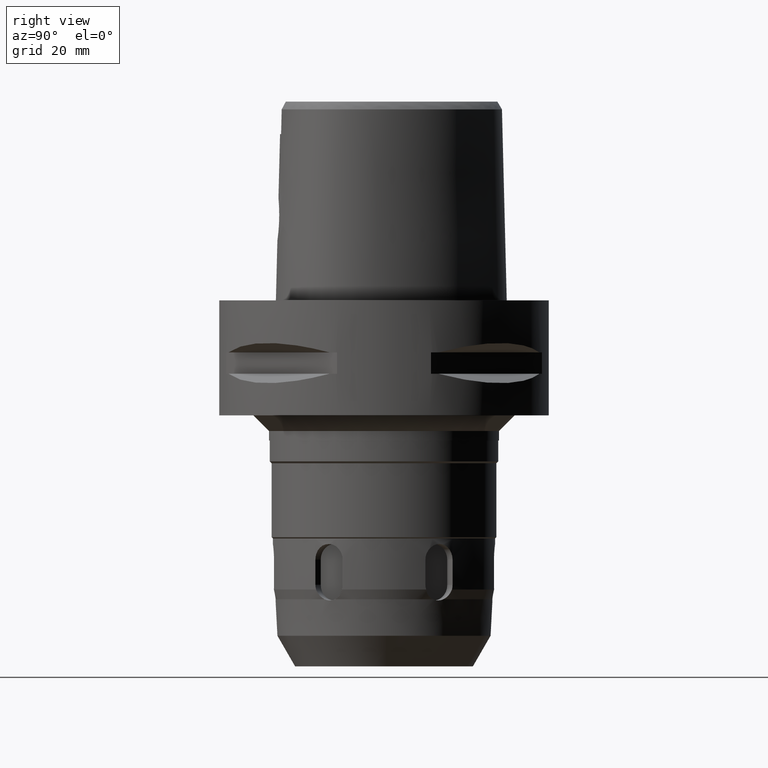
[diagram: clean part render]
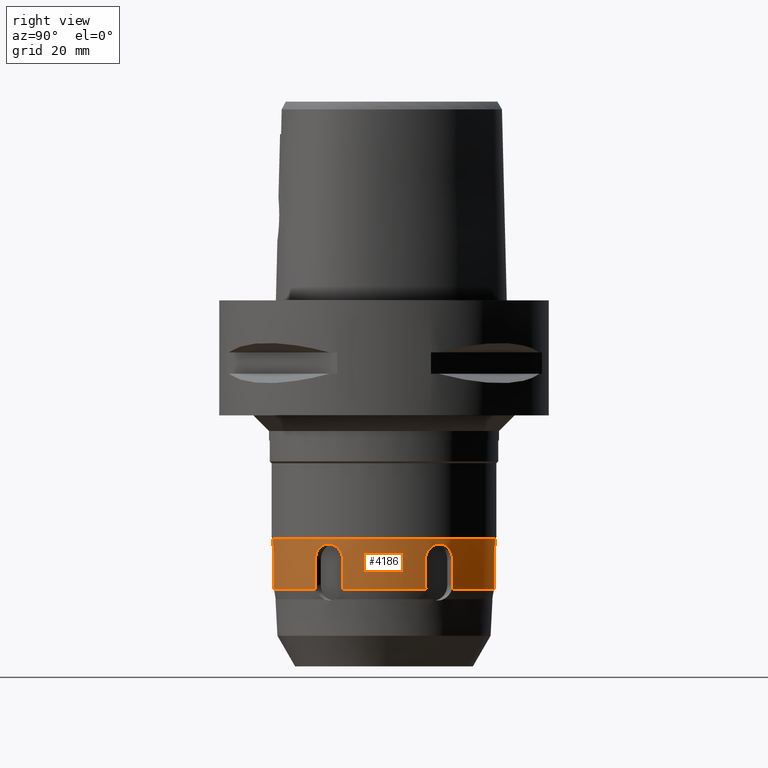
[diagram: same view with one face highlighted and labeled with its STEP entity id]
A machine part, right view. The second image highlights one B-rep face of the part: STEP entity #4186.
In plain terms, the highlighted cylindrical surface (partial cylindrical patch) has radius 21.25 mm, axis along (0, 0, -1).
Its self-contained STEP definition (entity closure, byte-faithful):
#704=CARTESIAN_POINT('',(0.E0,0.E0,-4.555E1));
#705=DIRECTION('',(0.E0,0.E0,-1.E0));
#706=DIRECTION('',(0.E0,1.E0,0.E0));
#707=AXIS2_PLACEMENT_3D('',#704,#705,#706);
#743=CARTESIAN_POINT('',(-2.567615003200E-14,-2.125E1,-4.66E1));
#918=CARTESIAN_POINT('',(4.728849157803E-14,2.125E1,-4.66E1));
#923=DIRECTION('',(-2.445347622095E-14,0.E0,-1.E0));
#924=VECTOR('',#923,1.05E0);
#925=CARTESIAN_POINT('',(0.E0,-2.125E1,-4.555E1));
#926=LINE('',#925,#924);
#944=CARTESIAN_POINT('',(1.671872319895E1,1.311666095456E1,-4.96E1));
#945=CARTESIAN_POINT('',(1.671872319895E1,1.311666095456E1,-4.933379791510E1));
#946=CARTESIAN_POINT('',(1.676123621623E1,1.306275115282E1,-4.882074715584E1));
#947=CARTESIAN_POINT('',(1.694867451517E1,1.282018111180E1,-4.808221549084E1));
#948=CARTESIAN_POINT('',(1.723784024842E1,1.243072233061E1,-4.745572118466E1));
#949=CARTESIAN_POINT('',(1.759913287066E1,1.191612741768E1,-4.697301523596E1));
#950=CARTESIAN_POINT('',(1.800403209641E1,1.129648766409E1,-4.666829134713E1));
#951=CARTESIAN_POINT('',(1.826964573644E1,1.085604583782E1,-4.659999793132E1));
#952=CARTESIAN_POINT('',(1.840304004243E1,1.062500012240E1,-4.659999793132E1));
#957=CARTESIAN_POINT('',(1.840304004243E1,1.062500012240E1,-4.659999793132E1));
#958=CARTESIAN_POINT('',(1.853574864374E1,1.039514208234E1,-4.659999793132E1));
#959=CARTESIAN_POINT('',(1.878343210619E1,9.946733057830E0,-4.666758012658E1));
#960=CARTESIAN_POINT('',(1.911733819137E1,9.287141210837E0,-4.697058583884E1));
#961=CARTESIAN_POINT('',(1.938279321588E1,8.716297995516E0,-4.745212205223E1));
#962=CARTESIAN_POINT('',(1.957620161717E1,8.269667572967E0,-4.807865539086E1));
#963=CARTESIAN_POINT('',(1.969313994092E1,7.984665750791E0,-4.881855155360E1));
#964=CARTESIAN_POINT('',(1.971872319895E1,7.920508531851E0,-4.933296625424E1));
#965=CARTESIAN_POINT('',(1.971872319895E1,7.920508531851E0,-4.96E1));
#970=DIRECTION('',(-2.534703475819E-6,-1.557840073513E-6,-9.999999999956E-1));
#971=VECTOR('',#970,4.800000003142E0);
#972=CARTESIAN_POINT('',(1.971872319895E1,7.920508531851E0,-4.96E1));
#973=LINE('',#972,#971);
#977=CARTESIAN_POINT('',(1.971871103237E1,7.920501054218E0,-5.440000000312E1));
#978=CARTESIAN_POINT('',(1.971871103237E1,7.920501054218E0,-5.450194895277E1));
#979=CARTESIAN_POINT('',(1.971484260139E1,7.930197852505E0,-5.470457107468E1));
#980=CARTESIAN_POINT('',(1.969733952301E1,7.973610046019E0,-5.500658111750E1));
#981=CARTESIAN_POINT('',(1.967797819010E1,8.021261975761E0,-5.520283074626E1));
#982=CARTESIAN_POINT('',(1.966629611086E1,8.049802181526E0,-5.529999827928E1));
#987=CARTESIAN_POINT('',(1.966631626823E1,-8.049790249418E0,-5.529994046295E1));
#988=CARTESIAN_POINT('',(1.967799593754E1,-8.021255905433E0,-5.520277232577E1));
#989=CARTESIAN_POINT('',(1.969733071141E1,-7.973619034714E0,-5.500660738934E1));
#990=CARTESIAN_POINT('',(1.971483694715E1,-7.930199872019E0,-5.470456264855E1));
#991=CARTESIAN_POINT('',(1.971872339800E1,-7.920506999311E0,-5.450194866380E1));
#992=CARTESIAN_POINT('',(1.971872339800E1,-7.920506999311E0,-5.440000000021E1));
#997=DIRECTION('',(-4.146747537762E-8,-3.192792100937E-7,9.999999999999E-1));
#998=VECTOR('',#997,4.800000000206E0);
#999=CARTESIAN_POINT('',(1.971872339800E1,-7.920506999311E0,-5.440000000021E1));
#1000=LINE('',#999,#998);
#1004=CARTESIAN_POINT('',(1.971872319895E1,-7.920508531851E0,-4.96E1));
#1005=CARTESIAN_POINT('',(1.971872319895E1,-7.920508531851E0,
-4.933379654980E1));
#1006=CARTESIAN_POINT('',(1.969329227982E1,-7.984281245963E0,
-4.882074311803E1));
#1007=CARTESIAN_POINT('',(1.957693772674E1,-8.267897029111E0,
-4.808220561418E1));
#1008=CARTESIAN_POINT('',(1.938423734344E1,-8.713055830317E0,
-4.745570966560E1));
#1009=CARTESIAN_POINT('',(1.911922648340E1,-9.283250787244E0,
-4.697300458184E1));
#1010=CARTESIAN_POINT('',(1.878506180084E1,-9.943704071281E0,
-4.666829320929E1));
#1011=CARTESIAN_POINT('',(1.853643479029E1,-1.039395359463E1,
-4.659999809687E1));
#1012=CARTESIAN_POINT('',(1.840304002207E1,-1.062500011065E1,
-4.659999809687E1));
#1017=CARTESIAN_POINT('',(1.840304002207E1,-1.062500011065E1,
-4.659999809687E1));
#1018=CARTESIAN_POINT('',(1.827032624819E1,-1.085486710987E1,
-4.659999809687E1));
#1019=CARTESIAN_POINT('',(1.800582618435E1,-1.129358450163E1,
-4.666758538950E1));
#1020=CARTESIAN_POINT('',(1.760155230669E1,-1.191255496477E1,
-4.697060314073E1));
#1021=CARTESIAN_POINT('',(1.723991995347E1,-1.242785897733E1,
-4.745214360937E1));
#1022=CARTESIAN_POINT('',(1.694983783062E1,-1.281866086234E1,
-4.807867218451E1));
#1023=CARTESIAN_POINT('',(1.676149284800E1,-1.306242722072E1,
-4.881855784925E1));
#1024=CARTESIAN_POINT('',(1.671872319895E1,-1.311666095456E1,
-4.933296826257E1));
#1025=CARTESIAN_POINT('',(1.671872319895E1,-1.311666095456E1,-4.96E1));
#1030=DIRECTION('',(-2.616480819181E-6,1.416197595674E-6,-9.999999999956E-1));
#1031=VECTOR('',#1030,4.800000003142E0);
#1032=CARTESIAN_POINT('',(1.671872319895E1,-1.311666095456E1,-4.96E1));
#1033=LINE('',#1032,#1031);
#1037=CARTESIAN_POINT('',(1.671871063984E1,-1.311665415681E1,
-5.440000000312E1));
#1038=CARTESIAN_POINT('',(1.671871063984E1,-1.311665415681E1,
-5.450194895277E1));
#1039=CARTESIAN_POINT('',(1.672517409800E1,-1.310845559817E1,
-5.470457107468E1));
#1040=CARTESIAN_POINT('',(1.675401862123E1,-1.307159139089E1,
-5.500658111747E1));
#1041=CARTESIAN_POINT('',(1.678560573648E1,-1.303099801984E1,
-5.520283074633E1));
#1042=CARTESIAN_POINT('',(1.680448124008E1,-1.300661093956E1,
-5.529999827935E1));
#1047=CARTESIAN_POINT('',(2.861835282155E0,-2.105642461190E1,
-5.529994046673E1));
#1048=CARTESIAN_POINT('',(2.892386583913E0,-2.105227233018E1,
-5.520277232984E1));
#1049=CARTESIAN_POINT('',(2.943308712558E0,-2.104519830008E1,
-5.500660738769E1));
#1050=CARTESIAN_POINT('',(2.989663926495E0,-2.103864956380E1,
-5.470456264908E1));
#1051=CARTESIAN_POINT('',(3.000001426565E0,-2.103716889259E1,
-5.450194866380E1));
#1052=CARTESIAN_POINT('',(3.000001426565E0,-2.103716889259E1,
-5.440000000021E1));
#1057=DIRECTION('',(-2.972011096357E-7,-1.237125091205E-7,9.999999999999E-1));
#1058=VECTOR('',#1057,4.800000000206E0);
#1059=CARTESIAN_POINT('',(3.000001426565E0,-2.103716889259E1,
-5.440000000021E1));
#1060=LINE('',#1059,#1058);
#1064=CARTESIAN_POINT('',(3.E0,-2.103716948641E1,-4.96E1));
#1065=CARTESIAN_POINT('',(3.E0,-2.103716948641E1,-4.933421519836E1));
#1066=CARTESIAN_POINT('',(2.932279389408E0,-2.104699945434E1,
-4.882175936811E1));
#1067=CARTESIAN_POINT('',(2.628876115544E0,-2.108799529368E1,
-4.808325925087E1));
#1068=CARTESIAN_POINT('',(2.147092814670E0,-2.114369921362E1,
-4.745636864641E1));
#1069=CARTESIAN_POINT('',(1.520547038077E0,-2.119933219757E1,
-4.697322434453E1));
#1070=CARTESIAN_POINT('',(7.810841241312E-1,-2.124019435587E1,
-4.666828607813E1));
#1071=CARTESIAN_POINT('',(2.667891004054E-1,-2.125E1,-4.66E1));
#1072=CARTESIAN_POINT('',(-2.567615003200E-14,-2.125E1,-4.66E1));
#1077=DIRECTION('',(2.706161919943E-14,0.E0,-1.E0));
#1078=VECTOR('',#1077,1.05E0);
#1079=CARTESIAN_POINT('',(1.887379141863E-14,2.125E1,-4.555E1));
#1080=LINE('',#1079,#1078);
#1084=CARTESIAN_POINT('',(4.728849157803E-14,2.125E1,-4.66E1));
#1085=CARTESIAN_POINT('',(2.655905181919E-1,2.125E1,-4.66E1));
#1086=CARTESIAN_POINT('',(7.780470340271E-1,2.124028374967E1,
-4.666766907772E1));
#1087=CARTESIAN_POINT('',(1.516506238430E0,2.119961985453E1,-4.697098492057E1));
#1088=CARTESIAN_POINT('',(2.143567747044E0,2.114406716711E1,-4.745282298070E1));
#1089=CARTESIAN_POINT('',(2.626822495208E0,2.108826187940E1,-4.807948769153E1));
#1090=CARTESIAN_POINT('',(2.931777548822E0,2.104707316218E1,-4.881918868424E1));
#1091=CARTESIAN_POINT('',(3.E0,2.103716948641E1,-4.933321909583E1));
#1092=CARTESIAN_POINT('',(3.E0,2.103716948641E1,-4.96E1));
#1097=DIRECTION('',(8.169025284203E-8,-2.974001426140E-6,-9.999999999956E-1));
#1098=VECTOR('',#1097,4.800000003142E0);
#1099=CARTESIAN_POINT('',(3.E0,2.103716948641E1,-4.96E1));
#1100=LINE('',#1099,#1098);
#1104=CARTESIAN_POINT('',(3.000000392113E0,2.103715521120E1,-5.440000000312E1));
#1105=CARTESIAN_POINT('',(3.000000392113E0,2.103715521120E1,-5.450194895272E1));
#1106=CARTESIAN_POINT('',(2.989668500771E0,2.103865345099E1,-5.470457107454E1));
#1107=CARTESIAN_POINT('',(2.943320900681E0,2.104520143706E1,-5.500658111735E1));
#1108=CARTESIAN_POINT('',(2.892372453533E0,2.105225999565E1,-5.520283074607E1));
#1109=CARTESIAN_POINT('',(2.861814870705E0,2.105641312114E1,-5.529999827911E1));
#1114=CARTESIAN_POINT('',(1.680448098584E1,1.300663436164E1,-5.529994046608E1));
#1115=CARTESIAN_POINT('',(1.678560935353E1,1.303101642421E1,-5.520277232901E1));
#1116=CARTESIAN_POINT('',(1.675402199968E1,1.307157926572E1,-5.500660738783E1));
#1117=CARTESIAN_POINT('',(1.672517301989E1,1.310844969162E1,-5.470456264898E1));
#1118=CARTESIAN_POINT('',(1.671872197126E1,1.311666189320E1,-5.450194866380E1));
#1119=CARTESIAN_POINT('',(1.671872197126E1,1.311666189320E1,-5.440000000021E1));
#1124=DIRECTION('',(2.557701428320E-7,-1.955514716739E-7,9.999999999999E-1));
#1125=VECTOR('',#1124,4.800000000206E0);
#1126=CARTESIAN_POINT('',(1.671872197126E1,1.311666189320E1,-5.440000000021E1));
#1127=LINE('',#1126,#1125);
#1261=CARTESIAN_POINT('',(0.E0,0.E0,-5.53E1));
#1262=DIRECTION('',(0.E0,0.E0,1.E0));
#1263=DIRECTION('',(7.907991113522E-1,6.120757841024E-1,0.E0));
#1264=AXIS2_PLACEMENT_3D('',#1261,#1262,#1263);
#2176=CARTESIAN_POINT('',(0.E0,0.E0,-5.53E1));
#2177=DIRECTION('',(0.E0,0.E0,1.E0));
#2178=DIRECTION('',(1.346736224493E-1,-9.908900117654E-1,0.E0));
#2179=AXIS2_PLACEMENT_3D('',#2176,#2177,#2178);
#2280=CARTESIAN_POINT('',(0.E0,0.E0,-5.53E1));
#2281=DIRECTION('',(0.E0,0.E0,1.E0));
#2282=DIRECTION('',(9.254727337502E-1,-3.788142276697E-1,0.E0));
#2283=AXIS2_PLACEMENT_3D('',#2280,#2281,#2282);
#2852=CARTESIAN_POINT('',(1.887379141863E-14,2.125E1,-4.555E1));
#2853=VERTEX_POINT('',#2852);
#2854=CARTESIAN_POINT('',(0.E0,-2.125E1,-4.555E1));
#2855=VERTEX_POINT('',#2854);
#2856=VERTEX_POINT('',#743);
#2886=VERTEX_POINT('',#918);
#2887=VERTEX_POINT('',#1064);
#2894=VERTEX_POINT('',#957);
#2895=VERTEX_POINT('',#965);
#2896=VERTEX_POINT('',#944);
#2897=CARTESIAN_POINT('',(1.971871103237E1,7.920501054218E0,-5.440000000312E1));
#2898=VERTEX_POINT('',#2897);
#2899=VERTEX_POINT('',#982);
#2900=CARTESIAN_POINT('',(1.966629559219E1,-8.049802337982E0,-5.53E1));
#2901=VERTEX_POINT('',#2900);
#2902=VERTEX_POINT('',#992);
#2903=CARTESIAN_POINT('',(1.971872319895E1,-7.920508531851E0,-4.96E1));
#2904=VERTEX_POINT('',#2903);
#2905=VERTEX_POINT('',#1017);
#2906=VERTEX_POINT('',#1025);
#2907=CARTESIAN_POINT('',(1.671871063984E1,-1.311665415681E1,
-5.440000000312E1));
#2908=VERTEX_POINT('',#2907);
#2909=VERTEX_POINT('',#1042);
#2910=CARTESIAN_POINT('',(2.861814477047E0,-2.105641275002E1,-5.53E1));
#2911=VERTEX_POINT('',#2910);
#2912=VERTEX_POINT('',#1052);
#2913=VERTEX_POINT('',#1092);
#2914=CARTESIAN_POINT('',(3.000000392113E0,2.103715521120E1,-5.440000000312E1));
#2915=VERTEX_POINT('',#2914);
#2916=VERTEX_POINT('',#1109);
#2917=CARTESIAN_POINT('',(1.680448111624E1,1.300661041218E1,-5.53E1));
#2918=VERTEX_POINT('',#2917);
#2919=VERTEX_POINT('',#1119);
#4135=CARTESIAN_POINT('',(0.E0,1.267509437118E-14,3.5E0));
#4136=DIRECTION('',(0.E0,0.E0,-1.E0));
#4137=DIRECTION('',(0.E0,-1.E0,0.E0));
#4138=AXIS2_PLACEMENT_3D('',#4135,#4136,#4137);
#4139=CYLINDRICAL_SURFACE('',#4138,2.125E1);
#4141=ORIENTED_EDGE('',*,*,#4140,.T.);
#4143=ORIENTED_EDGE('',*,*,#4142,.T.);
#4145=ORIENTED_EDGE('',*,*,#4144,.T.);
#4147=ORIENTED_EDGE('',*,*,#4146,.T.);
#4149=ORIENTED_EDGE('',*,*,#4148,.F.);
#4151=ORIENTED_EDGE('',*,*,#4150,.T.);
#4153=ORIENTED_EDGE('',*,*,#4152,.T.);
#4155=ORIENTED_EDGE('',*,*,#4154,.T.);
#4157=ORIENTED_EDGE('',*,*,#4156,.T.);
#4159=ORIENTED_EDGE('',*,*,#4158,.T.);
#4161=ORIENTED_EDGE('',*,*,#4160,.T.);
#4163=ORIENTED_EDGE('',*,*,#4162,.F.);
#4165=ORIENTED_EDGE('',*,*,#4164,.T.);
#4167=ORIENTED_EDGE('',*,*,#4166,.T.);
#4168=ORIENTED_EDGE('',*,*,#4121,.T.);
#4169=ORIENTED_EDGE('',*,*,#4111,.F.);
#4170=ORIENTED_EDGE('',*,*,#4040,.F.);
#4171=ORIENTED_EDGE('',*,*,#4108,.T.);
#4173=ORIENTED_EDGE('',*,*,#4172,.T.);
#4175=ORIENTED_EDGE('',*,*,#4174,.T.);
#4177=ORIENTED_EDGE('',*,*,#4176,.T.);
#4179=ORIENTED_EDGE('',*,*,#4178,.F.);
#4181=ORIENTED_EDGE('',*,*,#4180,.T.);
#4183=ORIENTED_EDGE('',*,*,#4182,.T.);
#4184=EDGE_LOOP('',(#4141,#4143,#4145,#4147,#4149,#4151,#4153,#4155,#4157,#4159,
#4161,#4163,#4165,#4167,#4168,#4169,#4170,#4171,#4173,#4175,#4177,#4179,#4181,
#4183));
#4185=FACE_OUTER_BOUND('',#4184,.F.);
#708=CIRCLE('',#707,2.125E1);
#953=B_SPLINE_CURVE_WITH_KNOTS('',3,(#944,#945,#946,#947,#948,#949,#950,#951,
#952),.UNSPECIFIED.,.F.,.F.,(4,1,1,1,1,1,4),(0.E0,1.666666666667E-1,
3.333333333333E-1,5.E-1,6.666666666667E-1,8.333333333333E-1,1.E0),
.UNSPECIFIED.);
#966=B_SPLINE_CURVE_WITH_KNOTS('',3,(#957,#958,#959,#960,#961,#962,#963,#964,
#965),.UNSPECIFIED.,.F.,.F.,(4,1,1,1,1,1,4),(0.E0,1.666666666667E-1,
3.333333333333E-1,5.E-1,6.666666666667E-1,8.333333333333E-1,1.E0),
.UNSPECIFIED.);
#983=B_SPLINE_CURVE_WITH_KNOTS('',3,(#977,#978,#979,#980,#981,#982),
.UNSPECIFIED.,.F.,.F.,(4,1,1,4),(0.E0,3.333333333333E-1,6.666666666667E-1,1.E0),
.UNSPECIFIED.);
#993=B_SPLINE_CURVE_WITH_KNOTS('',3,(#987,#988,#989,#990,#991,#992),
.UNSPECIFIED.,.F.,.F.,(4,1,1,4),(0.E0,3.333333333333E-1,6.666666666667E-1,1.E0),
.UNSPECIFIED.);
#1013=B_SPLINE_CURVE_WITH_KNOTS('',3,(#1004,#1005,#1006,#1007,#1008,#1009,#1010,
#1011,#1012),.UNSPECIFIED.,.F.,.F.,(4,1,1,1,1,1,4),(0.E0,1.666666666667E-1,
3.333333333333E-1,5.E-1,6.666666666667E-1,8.333333333333E-1,1.E0),
.UNSPECIFIED.);
#1026=B_SPLINE_CURVE_WITH_KNOTS('',3,(#1017,#1018,#1019,#1020,#1021,#1022,#1023,
#1024,#1025),.UNSPECIFIED.,.F.,.F.,(4,1,1,1,1,1,4),(0.E0,1.666666666667E-1,
3.333333333333E-1,5.E-1,6.666666666667E-1,8.333333333333E-1,1.E0),
.UNSPECIFIED.);
#1043=B_SPLINE_CURVE_WITH_KNOTS('',3,(#1037,#1038,#1039,#1040,#1041,#1042),
.UNSPECIFIED.,.F.,.F.,(4,1,1,4),(0.E0,3.333333333333E-1,6.666666666667E-1,1.E0),
.UNSPECIFIED.);
#1053=B_SPLINE_CURVE_WITH_KNOTS('',3,(#1047,#1048,#1049,#1050,#1051,#1052),
.UNSPECIFIED.,.F.,.F.,(4,1,1,4),(0.E0,3.333333333333E-1,6.666666666667E-1,1.E0),
.UNSPECIFIED.);
#1073=B_SPLINE_CURVE_WITH_KNOTS('',3,(#1064,#1065,#1066,#1067,#1068,#1069,#1070,
#1071,#1072),.UNSPECIFIED.,.F.,.F.,(4,1,1,1,1,1,4),(0.E0,1.666666666667E-1,
3.333333333333E-1,5.E-1,6.666666666667E-1,8.333333333333E-1,1.E0),
.UNSPECIFIED.);
#1093=B_SPLINE_CURVE_WITH_KNOTS('',3,(#1084,#1085,#1086,#1087,#1088,#1089,#1090,
#1091,#1092),.UNSPECIFIED.,.F.,.F.,(4,1,1,1,1,1,4),(0.E0,1.666666666667E-1,
3.333333333333E-1,5.E-1,6.666666666667E-1,8.333333333333E-1,1.E0),
.UNSPECIFIED.);
#1110=B_SPLINE_CURVE_WITH_KNOTS('',3,(#1104,#1105,#1106,#1107,#1108,#1109),
.UNSPECIFIED.,.F.,.F.,(4,1,1,4),(0.E0,3.333333333333E-1,6.666666666667E-1,1.E0),
.UNSPECIFIED.);
#1120=B_SPLINE_CURVE_WITH_KNOTS('',3,(#1114,#1115,#1116,#1117,#1118,#1119),
.UNSPECIFIED.,.F.,.F.,(4,1,1,4),(0.E0,3.333333333333E-1,6.666666666667E-1,1.E0),
.UNSPECIFIED.);
#1265=CIRCLE('',#1264,2.125E1);
#2180=CIRCLE('',#2179,2.125E1);
#2284=CIRCLE('',#2283,2.125E1);
#4040=EDGE_CURVE('',#2853,#2855,#708,.T.);
#4108=EDGE_CURVE('',#2853,#2886,#1080,.T.);
#4111=EDGE_CURVE('',#2855,#2856,#926,.T.);
#4121=EDGE_CURVE('',#2887,#2856,#1073,.T.);
#4140=EDGE_CURVE('',#2896,#2894,#953,.T.);
#4142=EDGE_CURVE('',#2894,#2895,#966,.T.);
#4144=EDGE_CURVE('',#2895,#2898,#973,.T.);
#4146=EDGE_CURVE('',#2898,#2899,#983,.T.);
#4148=EDGE_CURVE('',#2901,#2899,#2284,.T.);
#4150=EDGE_CURVE('',#2901,#2902,#993,.T.);
#4152=EDGE_CURVE('',#2902,#2904,#1000,.T.);
#4154=EDGE_CURVE('',#2904,#2905,#1013,.T.);
#4156=EDGE_CURVE('',#2905,#2906,#1026,.T.);
#4158=EDGE_CURVE('',#2906,#2908,#1033,.T.);
#4160=EDGE_CURVE('',#2908,#2909,#1043,.T.);
#4162=EDGE_CURVE('',#2911,#2909,#2180,.T.);
#4164=EDGE_CURVE('',#2911,#2912,#1053,.T.);
#4166=EDGE_CURVE('',#2912,#2887,#1060,.T.);
#4172=EDGE_CURVE('',#2886,#2913,#1093,.T.);
#4174=EDGE_CURVE('',#2913,#2915,#1100,.T.);
#4176=EDGE_CURVE('',#2915,#2916,#1110,.T.);
#4178=EDGE_CURVE('',#2918,#2916,#1265,.T.);
#4180=EDGE_CURVE('',#2918,#2919,#1120,.T.);
#4182=EDGE_CURVE('',#2919,#2896,#1127,.T.);
#4186=ADVANCED_FACE('',(#4185),#4139,.T.);